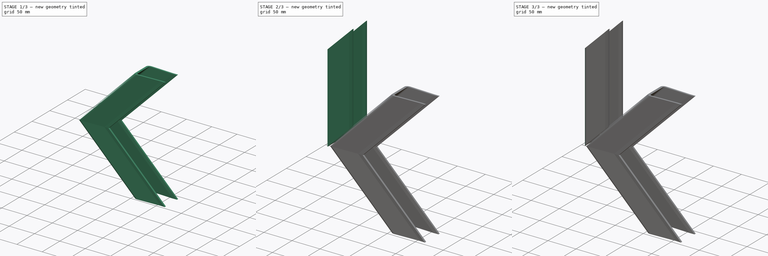
[diagram: build sequence overview — one tinted view per stage of 3, left to right]
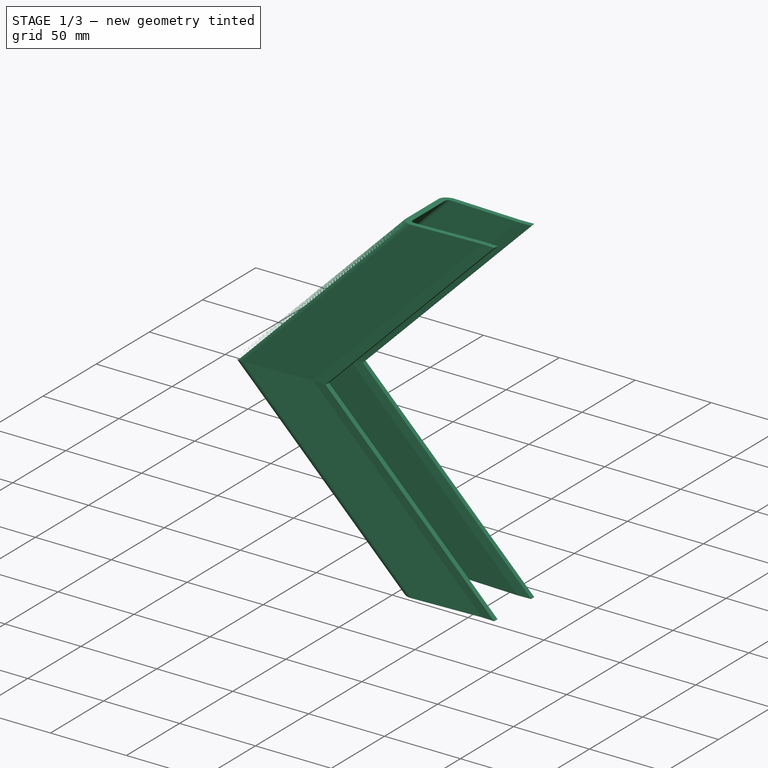
[diagram: stage 1 of 3 — iso view after this stage's code; geometry added in this stage tinted green]
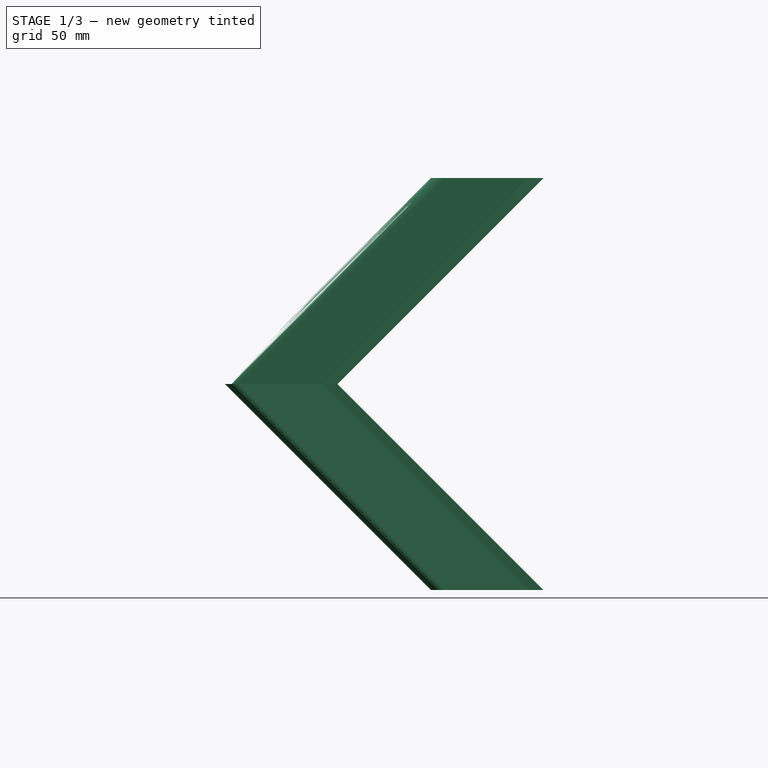
[diagram: stage 1 of 3 — front view after this stage's code; geometry added in this stage tinted green]
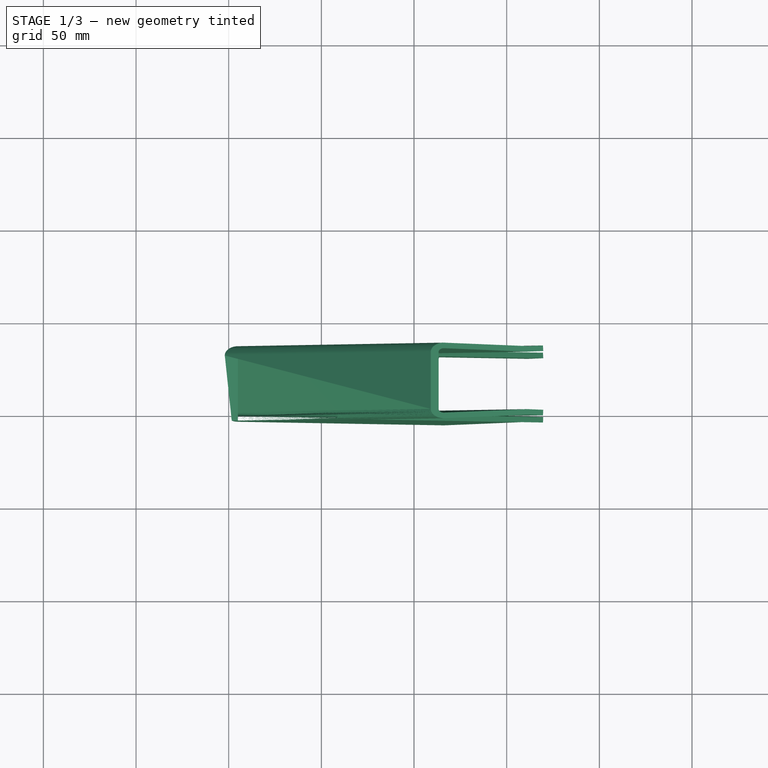
[diagram: stage 1 of 3 — top view after this stage's code; geometry added in this stage tinted green]
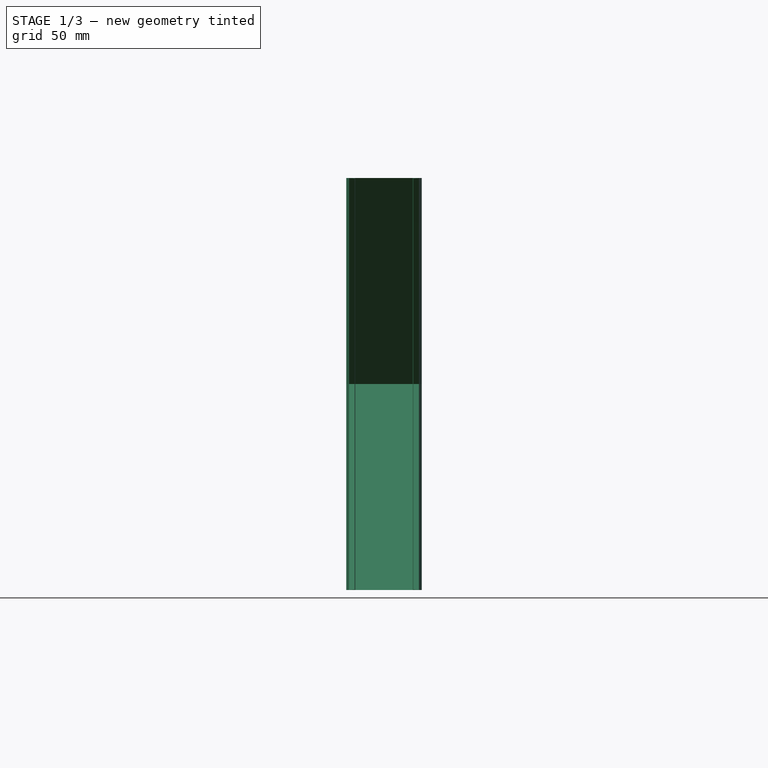
[diagram: stage 1 of 3 — right view after this stage's code; geometry added in this stage tinted green]
FCSTD DOCUMENT  (FreeCAD 0.17R11141 (Git))
Label: shelf_corner
License: All rights reserved
LicenseURL: http://en.wikipedia.org/wiki/All_rights_reserved
objects: Sketcher::SketchObject×2, PartDesign::Fillet×2, PartDesign::Pad×1, PartDesign::Pocket×1, PartDesign::Body×1, Part::Feature×1, Part::Mirroring×1, Part::MultiFuse×1
note: 12 computed .brp shape members not serialized (recipe doc carries the construction recipe); baked Part::Feature solids carry a one-line shape summary decoded from their .brp

FEATURE [PartDesign::Body] Body
  Group = -> [Sketch,Pad,Sketch001,Pocket,Fillet,Fillet001]
  Origin = -> BodyOrigin
  Tip = -> Fillet001
FEATURE [Part::Feature] Fillet001001  label="Fillet002"
  Placement = pos=(0,0,0) rot=(0,1,0;0.785398rad)
  shape: bbox 171.8 x 40.76 x 118.6 mm, 20 faces (baked)
FEATURE [Part::Mirroring] Part__Mirroring  label="Fillet002 (Mirror #1)"
  Base = (0,0,0)
  Normal = (0,0,1)
  Placement = pos=(0,0,4.25) rot=(0,0,1;0rad)
  Source = -> Fillet001001
FEATURE [Part::MultiFuse] Fusion
  Shapes = -> [Fillet001001,Part__Mirroring]
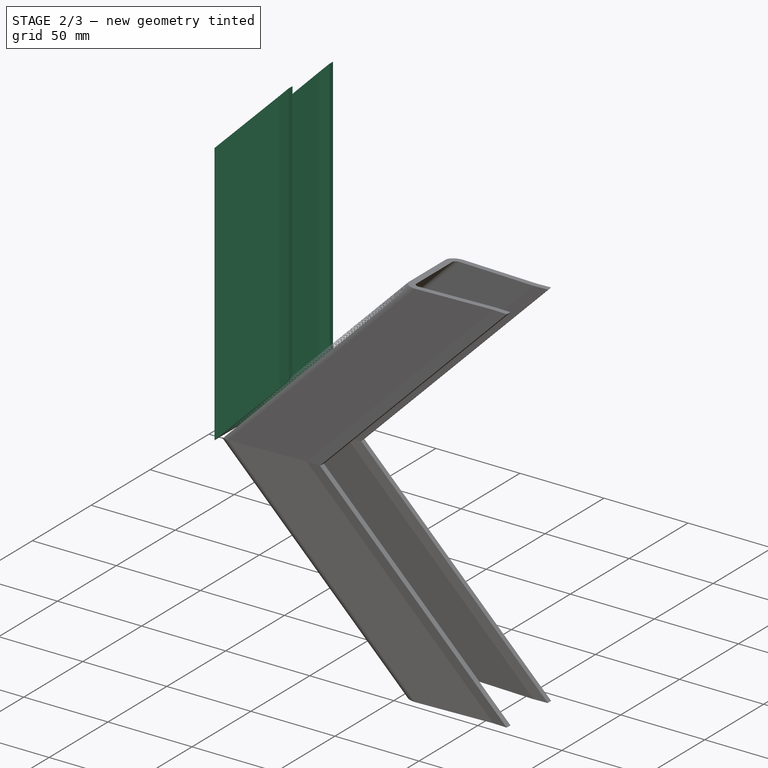
[diagram: stage 2 of 3 — iso view after this stage's code; geometry added in this stage tinted green]
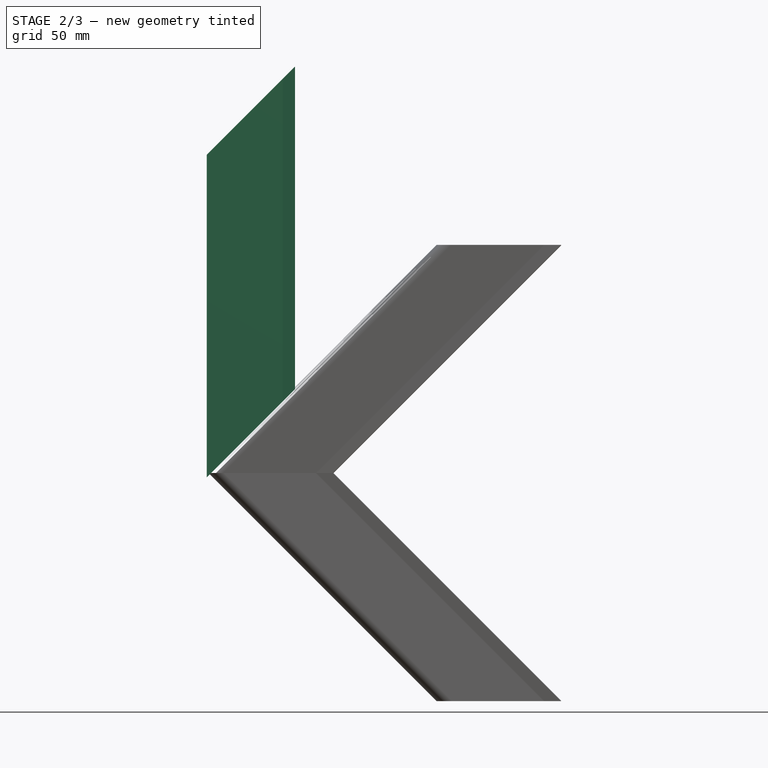
[diagram: stage 2 of 3 — front view after this stage's code; geometry added in this stage tinted green]
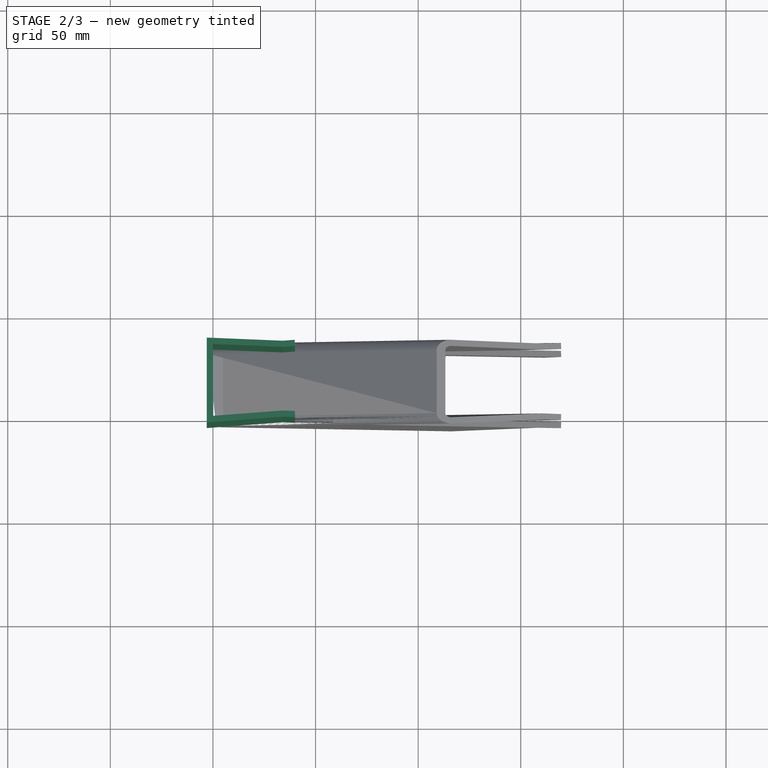
[diagram: stage 2 of 3 — top view after this stage's code; geometry added in this stage tinted green]
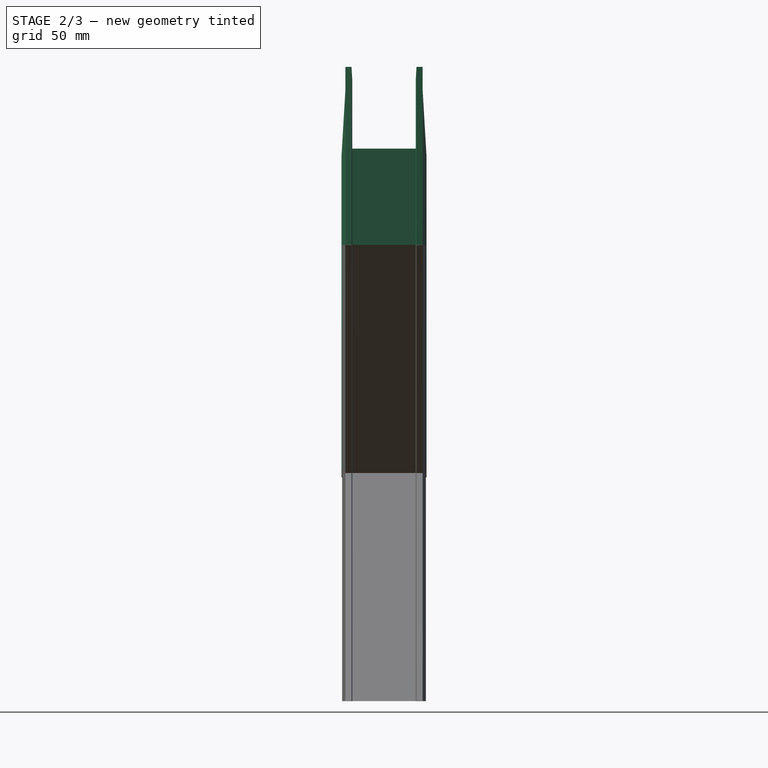
[diagram: stage 2 of 3 — right view after this stage's code; geometry added in this stage tinted green]
FEATURE [Sketcher::SketchObject] Sketch
  MapMode = 5
  Support = -> [XY_Plane]
  sketch-geometry (17):
    g0: LineSegment StartX=0 StartY=-2 StartZ=0 EndX=34 EndY=0 EndZ=0
    g1: LineSegment StartX=34 StartY=0 StartZ=0 EndX=40 EndY=-0.352941 EndZ=0
    g2: LineSegment StartX=40 StartY=-0.352941 StartZ=0 EndX=39.8238 EndY=-3.34776 EndZ=0
    g3: LineSegment StartX=39.8238 StartY=-3.34776 StartZ=0 EndX=34 EndY=-3.00519 EndZ=0
    g4: LineSegment StartX=34 StartY=-3.00519 StartZ=0 EndX=-3 EndY=-5.18166 EndZ=0
    g5: LineSegment StartX=-3 StartY=-5.18166 StartZ=0 EndX=-3 EndY=36.1817 EndZ=0
    g6: LineSegment StartX=-3 StartY=36.1817 StartZ=0 EndX=34 EndY=34.0052 EndZ=0
    g7: LineSegment StartX=34 StartY=34.0052 StartZ=0 EndX=39.8238 EndY=34.3478 EndZ=0
    g8: LineSegment StartX=39.8238 StartY=34.3478 StartZ=0 EndX=40 EndY=31.3529 EndZ=0
    g9: LineSegment StartX=40 StartY=31.3529 StartZ=0 EndX=34 EndY=31 EndZ=0
    g10: LineSegment StartX=34 StartY=31 StartZ=0 EndX=0 EndY=33 EndZ=0
    g11: LineSegment StartX=0 StartY=33 StartZ=0 EndX=0 EndY=-2 EndZ=0
    g12: LineSegment [constr] StartX=0 StartY=-2 StartZ=0 EndX=0.176166 EndY=-4.99482 EndZ=0
    g13: LineSegment [constr] StartX=0 StartY=-2 StartZ=0 EndX=-3 EndY=-2 EndZ=0
    g14: LineSegment [constr] StartX=34 StartY=0 StartZ=0 EndX=34 EndY=31 EndZ=0
    g15: LineSegment [constr] StartX=34 StartY=31 StartZ=0 EndX=0 EndY=31 EndZ=0
    g16: LineSegment [constr] StartX=34 StartY=0 StartZ=0 EndX=0 EndY=0 EndZ=0
  constraints (50):
    c: PointOnObject(g0,g-2)
    c: PointOnObject(g0,g-1)
    c: Coincident(g0,g1)
    c: Coincident(g1,g2)
    c: Coincident(g2,g3)
    c: Coincident(g3,g4)
    c: Coincident(g4,g5)
    c: Vertical(g5)
    c: Coincident(g5,g6)
    c: Coincident(g6,g7)
    c: Coincident(g7,g8)
    c: Coincident(g8,g9)
    c: Coincident(g9,g10)
    c: PointOnObject(g10,g-2)
    c: Coincident(g10,g11)
    c: Coincident(g11,g0)
    c: Coincident(g12,g0)
    c: PointOnObject(g12,g4)
    c: Perpendicular(g4,g12)
    c: Parallel(g4,g0)
    c: Parallel(g10,g6)
    c: Parallel(g9,g7)
    c: Parallel(g7,g0)
    c: Parallel(g3,g1)
    c: Parallel(g1,g10)
    c: Perpendicular(g3,g2)
    c: Perpendicular(g9,g8)
    c: Coincident(g13,g0)
    c: PointOnObject(g13,g5)
    c: Horizontal(g13)
    c: Equal(g13,g12)
    c: Equal(g12,g2)
    c: Equal(g2,g8)
    c: Equal(g3,g7)
    c: Equal(g6,g4)
    c: Coincident(g14,g0)
    c: Coincident(g14,g9)
    c: Vertical(g14)
    c: Coincident(g15,g9)
    c: PointOnObject(g15,g11)
    c: Horizontal(g15)
    c: Coincident(g16,g0)
    c: Coincident(g16,g-1)
    c: Equal(g16,g15)
    c: Equal(g0,g10)
    c: DistanceX(g9,g9) = 6
    c: DistanceX(g10,g8) = 40
    c: DistanceX(g13,g13) = 3
    c: DistanceY(g14,g14) = 31
    c: DistanceY(g15,g10) = 2
FEATURE [PartDesign::Pad] Pad
  Length = 200
  Length2 = 100
  Profile = -> Sketch
  Type = 0
FEATURE [Sketcher::SketchObject] Sketch001
  ExternalGeometry = -> [Pad]
  MapMode = 5
  Placement = pos=(0,0,0) rot=(1,0,0;1.5708rad)
  Support = -> [XZ_Plane]
  sketch-geometry (12):
    g0: LineSegment StartX=-3 StartY=0 StartZ=0 EndX=39.8238 EndY=42.8238 EndZ=0
    g1: LineSegment [constr] StartX=39.8238 StartY=42.8238 StartZ=0 EndX=39.8238 EndY=0 EndZ=0
    g2: LineSegment StartX=-3 StartY=0 StartZ=0 EndX=39.8238 EndY=0 EndZ=0
    g3: LineSegment [constr] StartX=-3 StartY=200 StartZ=0 EndX=-3 EndY=157.176 EndZ=0
    g4: LineSegment StartX=-3 StartY=157.176 StartZ=0 EndX=39.8238 EndY=200 EndZ=0
    g5: LineSegment StartX=39.8238 StartY=200 StartZ=0 EndX=-3 EndY=200 EndZ=0
    g6: LineSegment StartX=-3 StartY=200 StartZ=0 EndX=-4 EndY=200 EndZ=0
    g7: LineSegment StartX=-4 StartY=200 StartZ=0 EndX=-4 EndY=156.176 EndZ=0
    g8: LineSegment StartX=-4 StartY=156.176 StartZ=0 EndX=-3 EndY=157.176 EndZ=0
    g9: LineSegment StartX=39.8238 StartY=42.8238 StartZ=0 EndX=40.8238 EndY=43.8238 EndZ=0
    g10: LineSegment StartX=40.8238 StartY=43.8238 StartZ=0 EndX=40.8238 EndY=0 EndZ=0
    g11: LineSegment StartX=40.8238 StartY=0 StartZ=0 EndX=39.8238 EndY=0 EndZ=0
  constraints (30):
    c: Coincident(g-7,g0)
    c: PointOnObject(g0,g-4)
    c: Coincident(g0,g1)
    c: Coincident(g1,g-8)
    c: Coincident(g2,g0)
    c: Equal(g1,g2)
    c: Coincident(g1,g2)
    c: Coincident(g-5,g3)
    c: PointOnObject(g3,g-3)
    c: Coincident(g3,g4)
    c: Coincident(g4,g-6)
    c: Coincident(g4,g5)
    c: Coincident(g5,g3)
    c: Equal(g4,g0)
    c: Coincident(g3,g6)
    c: Horizontal(g6)
    c: Coincident(g6,g7)
    c: Vertical(g7)
    c: Coincident(g7,g8)
    c: Coincident(g8,g3)
    c: Coincident(g0,g9)
    c: Coincident(g9,g10)
    c: PointOnObject(g10,g-1)
    c: Vertical(g10)
    c: Coincident(g10,g11)
    c: Coincident(g11,g1)
    c: Equal(g11,g6)
    c: DistanceX(g6,g6) = 1
    c: PointOnObject(g9,g0)
    c: PointOnObject(g7,g4)
FEATURE [PartDesign::Pocket] Pocket
  BaseFeature = -> Pad
  Length = 5
  Midplane = true
  Profile = -> Sketch001
  Type = 1
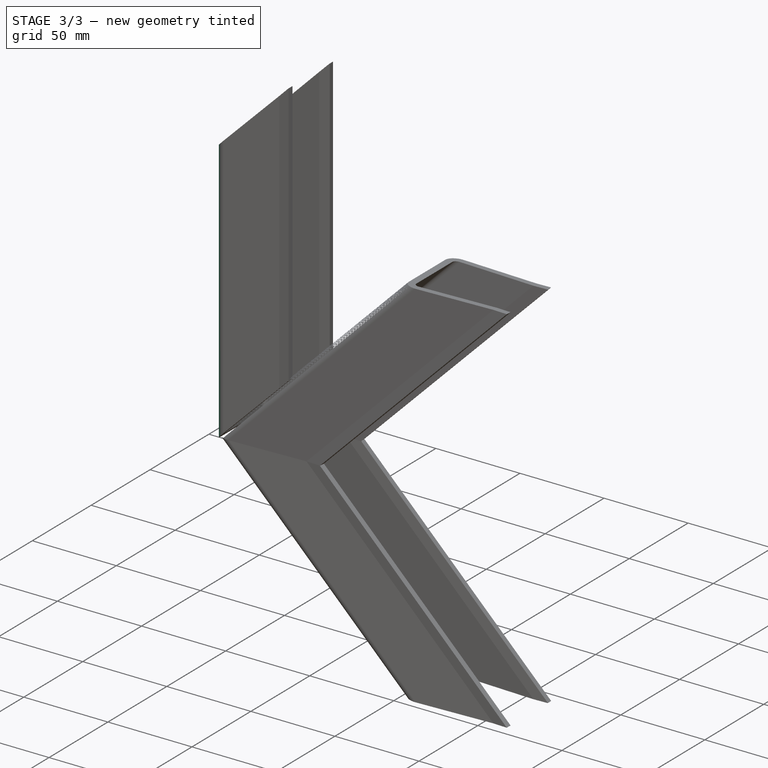
[diagram: stage 3 of 3 — iso view after this stage's code; geometry added in this stage tinted green]
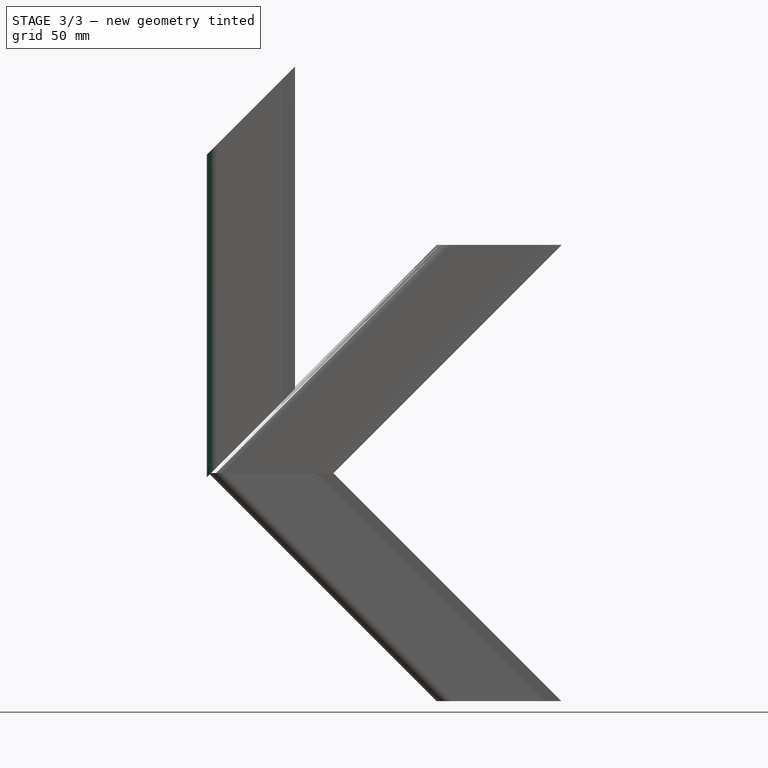
[diagram: stage 3 of 3 — front view after this stage's code; geometry added in this stage tinted green]
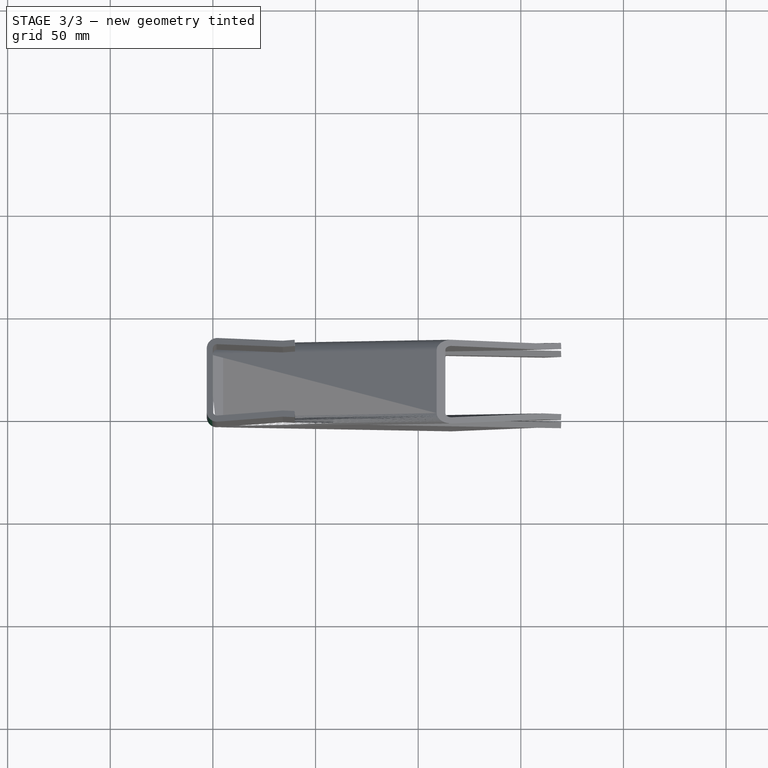
[diagram: stage 3 of 3 — top view after this stage's code; geometry added in this stage tinted green]
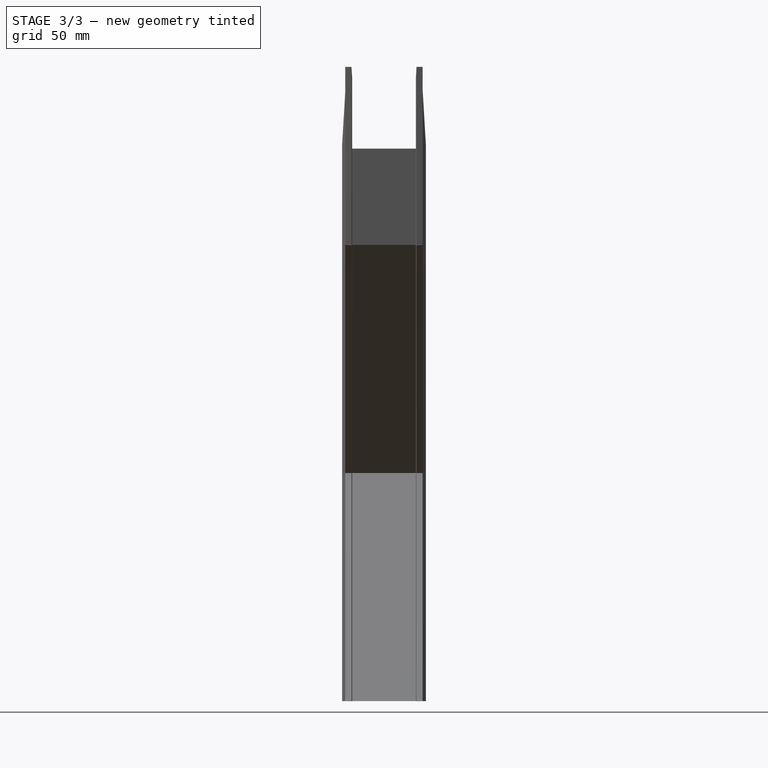
[diagram: stage 3 of 3 — right view after this stage's code; geometry added in this stage tinted green]
FEATURE [PartDesign::Fillet] Fillet
  Base = -> Pocket [Edge30,Edge4]
  BaseFeature = -> Pocket
  Radius = 2
FEATURE [PartDesign::Fillet] Fillet001
  Base = -> Fillet [Edge41,Edge45]
  BaseFeature = -> Fillet
  Radius = 5
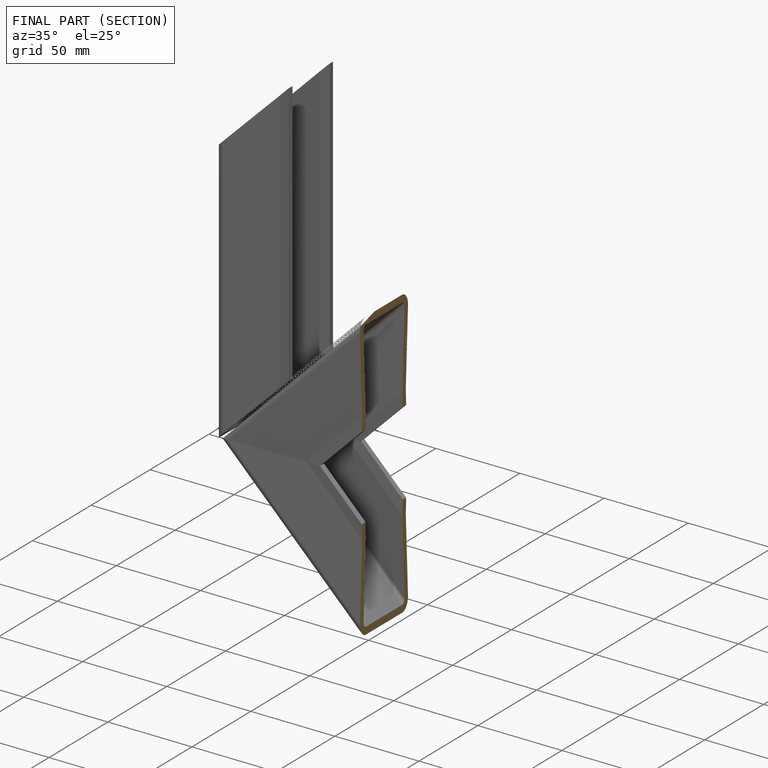
[diagram: finished part — half-section view (interior)]
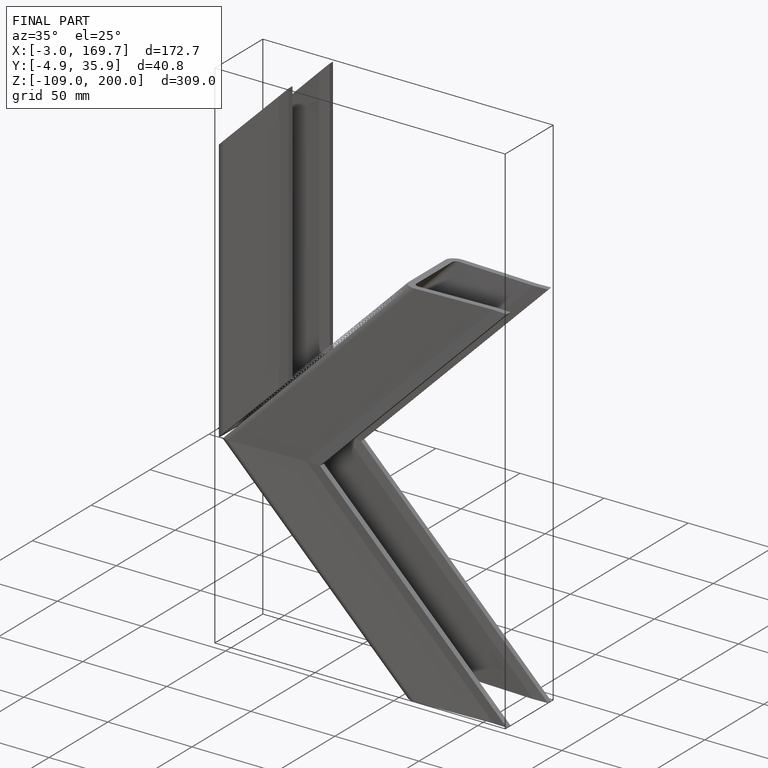
[diagram: finished part — iso view with bounding-box wireframe]
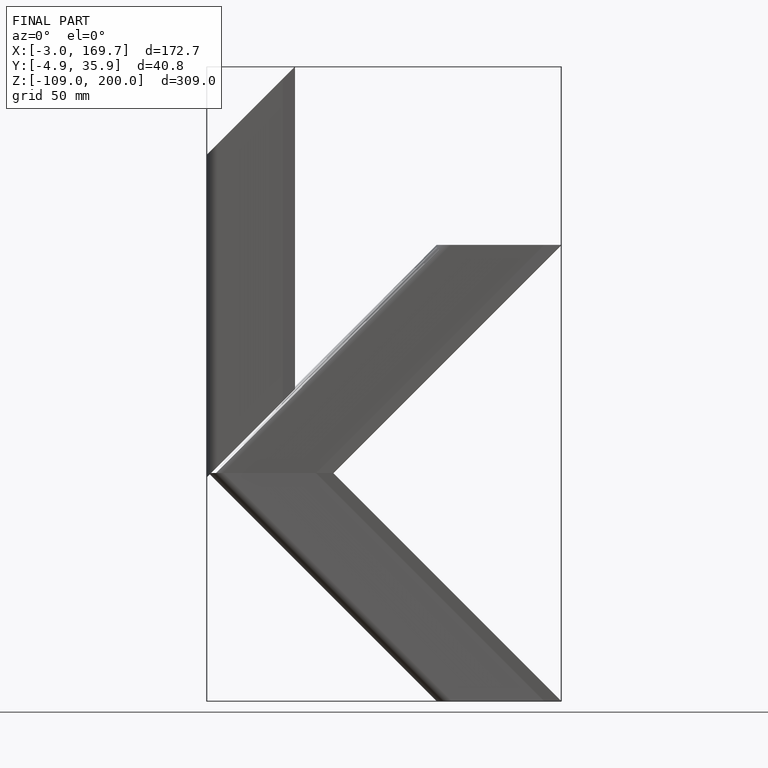
[diagram: finished part — front view with bounding-box wireframe]
